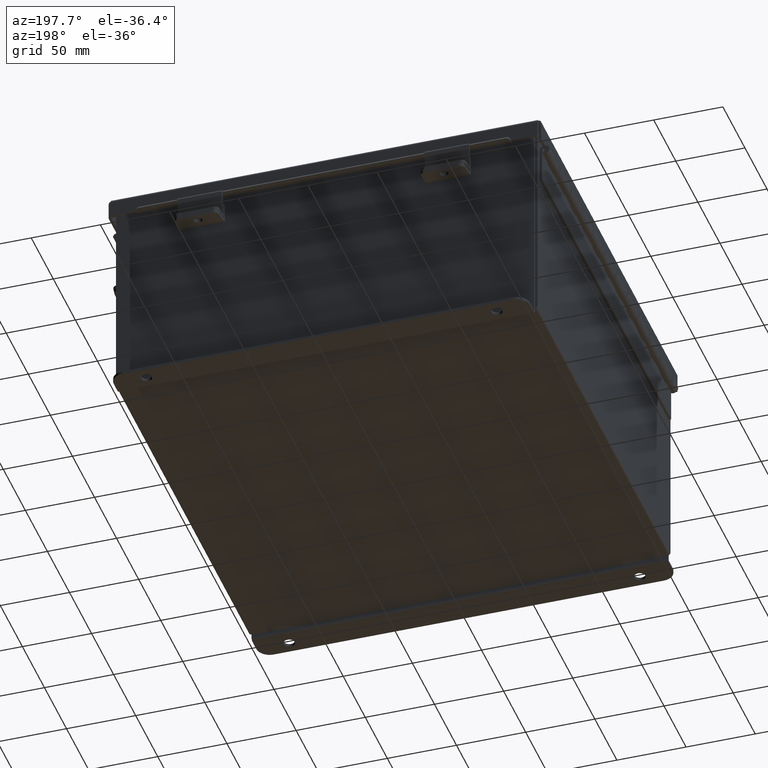
[diagram: clean part render]
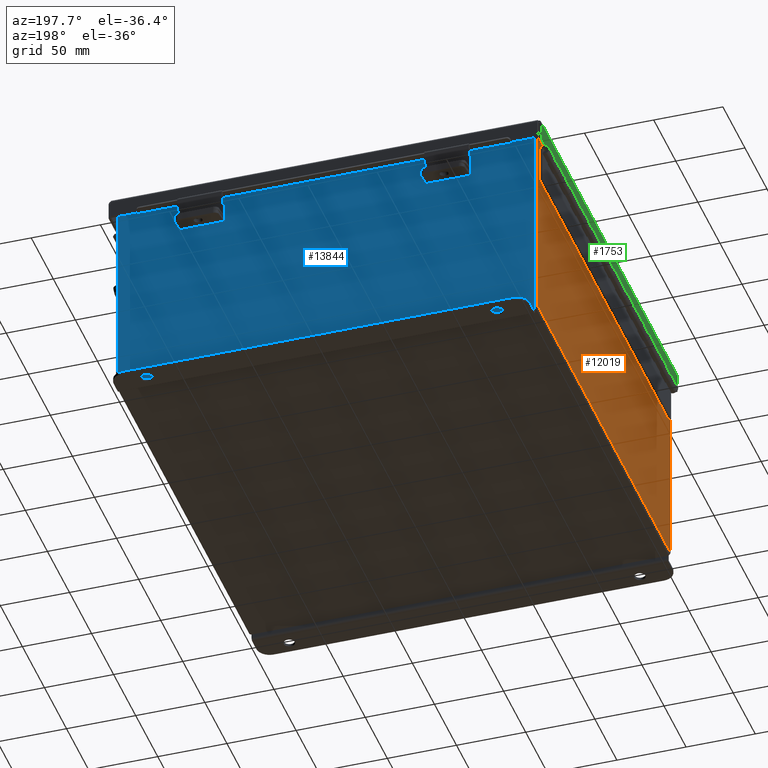
[diagram: same view with three faces highlighted in distinct colors, each labeled with its STEP entity id]
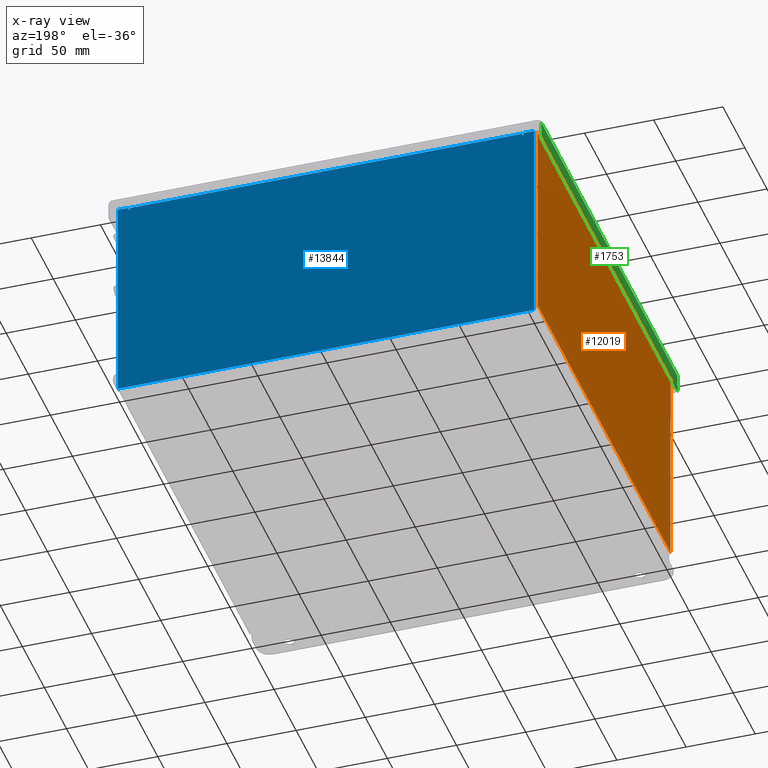
[diagram: x-ray of the same camera — body ghosted, the three highlighted faces saturated]
A machine part, auxiliary view with three faces highlighted in distinct colors.
The next image is the same camera in x-ray (body ghosted, the three faces saturated) — at least one of them is partly hidden behind the body in this view.
Their STEP definitions:

[orange] entity #12019 — the highlighted planar face has unit normal (1, 0, 0).
#993 = VECTOR ( 'NONE', #8029, 39.37007874015748100 ) ;
#1295 = DIRECTION ( 'NONE',  ( 3.548703509357741800E-015, 0.0000000000000000000, -1.000000000000000000 ) ) ;
#1420 = AXIS2_PLACEMENT_3D ( 'NONE', #5701, #11157, #3042 ) ;
#1666 = PLANE ( 'NONE',  #1420 ) ;
#1889 = EDGE_CURVE ( 'NONE', #13691, #6741, #4329, .T. ) ;
#2538 = CARTESIAN_POINT ( 'NONE',  ( -6.000000000000017800, -5.925299999999998200, 5.837600000000000100 ) ) ;
#2964 = EDGE_LOOP ( 'NONE', ( #8204, #11521, #15919, #7945 ) ) ;
#3042 = DIRECTION ( 'NONE',  ( 3.548703509357741000E-015, 0.0000000000000000000, -1.000000000000000000 ) ) ;
#4015 = EDGE_CURVE ( 'NONE', #13691, #15722, #7389, .T. ) ;
#4186 = VECTOR ( 'NONE', #1295, 39.37007874015748100 ) ;
#4264 = VECTOR ( 'NONE', #5205, 39.37007874015748100 ) ;
#4329 = LINE ( 'NONE', #14646, #15132 ) ;
#5205 = DIRECTION ( 'NONE',  ( -3.272245645671368800E-031, 1.000000000000000000, 9.220960942616457600E-017 ) ) ;
#5701 = CARTESIAN_POINT ( 'NONE',  ( -5.999999999999998200, 0.0000000000000000000, -2.155303471215802200E-014 ) ) ;
#6741 = VERTEX_POINT ( 'NONE', #13870 ) ;
#7271 = EDGE_CURVE ( 'NONE', #6741, #9730, #8208, .T. ) ;
#7290 = EDGE_CURVE ( 'NONE', #9730, #15722, #14549, .T. ) ;
#7389 = LINE ( 'NONE', #10659, #4264 ) ;
#7945 = ORIENTED_EDGE ( 'NONE', *, *, #1889, .T. ) ;
#8029 = DIRECTION ( 'NONE',  ( 0.0000000000000000000, 1.000000000000000000, 0.0000000000000000000 ) ) ;
#8204 = ORIENTED_EDGE ( 'NONE', *, *, #7271, .T. ) ;
#8208 = LINE ( 'NONE', #2538, #993 ) ;
#8853 = CARTESIAN_POINT ( 'NONE',  ( -5.999999999999998200, 5.925300000000000000, 0.01299999999999978100 ) ) ;
#9246 = CARTESIAN_POINT ( 'NONE',  ( -5.999999999999998200, -5.925299999999998200, 0.01299999999999875400 ) ) ;
#9730 = VERTEX_POINT ( 'NONE', #11135 ) ;
#10659 = CARTESIAN_POINT ( 'NONE',  ( -5.999999999999998200, 5.925300000000000000, 0.01299999999999984700 ) ) ;
#11135 = CARTESIAN_POINT ( 'NONE',  ( -6.000000000000018700, 5.925300000000000000, 5.837600000000000100 ) ) ;
#11157 = DIRECTION ( 'NONE',  ( 1.000000000000000000, 0.0000000000000000000, 3.548703509357741000E-015 ) ) ;
#11521 = ORIENTED_EDGE ( 'NONE', *, *, #7290, .T. ) ;
#12019 = ADVANCED_FACE ( 'NONE', ( #12191 ), #1666, .F. ) ;
#12144 = CARTESIAN_POINT ( 'NONE',  ( -5.999999999999998200, 5.925300000000000000, -2.155303471215802200E-014 ) ) ;
#12191 = FACE_OUTER_BOUND ( 'NONE', #2964, .T. ) ;
#13691 = VERTEX_POINT ( 'NONE', #9246 ) ;
#13870 = CARTESIAN_POINT ( 'NONE',  ( -6.000000000000017800, -5.925299999999997300, 5.837600000000000100 ) ) ;
#14549 = LINE ( 'NONE', #12144, #4186 ) ;
#14646 = CARTESIAN_POINT ( 'NONE',  ( -5.999999999999998200, -5.925300000000000000, -2.044634350668447200E-014 ) ) ;
#14753 = DIRECTION ( 'NONE',  ( -3.548703509357741800E-015, 1.867738689135653700E-016, 1.000000000000000000 ) ) ;
#15132 = VECTOR ( 'NONE', #14753, 39.37007874015748100 ) ;
#15722 = VERTEX_POINT ( 'NONE', #8853 ) ;
#15919 = ORIENTED_EDGE ( 'NONE', *, *, #4015, .F. ) ;

[blue] entity #13844 — the highlighted planar face has unit normal (0, -1, 0).
#61 = VECTOR ( 'NONE', #12616, 39.37007874015748100 ) ;
#181 = LINE ( 'NONE', #10987, #7328 ) ;
#186 = EDGE_CURVE ( 'NONE', #10593, #3145, #13520, .T. ) ;
#330 = DIRECTION ( 'NONE',  ( 1.000000000000000000, 0.0000000000000000000, 0.0000000000000000000 ) ) ;
#384 = VERTEX_POINT ( 'NONE', #6153 ) ;
#579 = CARTESIAN_POINT ( 'NONE',  ( 5.582299999999999200, 0.0000000000000000000, 0.0000000000000000000 ) ) ;
#827 = CARTESIAN_POINT ( 'NONE',  ( -5.925300000000001800, 0.0000000000000000000, 2.925300000000000000 ) ) ;
#968 = DIRECTION ( 'NONE',  ( 1.000000000000000000, -0.0000000000000000000, -0.0000000000000000000 ) ) ;
#1427 = PLANE ( 'NONE',  #8473 ) ;
#1695 = EDGE_CURVE ( 'NONE', #5341, #14082, #3268, .T. ) ;
#1698 = CARTESIAN_POINT ( 'NONE',  ( -5.582300000000000000, 2.287922694693820400E-015, 2.912299999999998800 ) ) ;
#1739 = CARTESIAN_POINT ( 'NONE',  ( 5.925299999999999100, 0.0000000000000000000, 2.925300000000000000 ) ) ;
#1956 = ORIENTED_EDGE ( 'NONE', *, *, #3551, .F. ) ;
#2033 = ORIENTED_EDGE ( 'NONE', *, *, #6102, .F. ) ;
#2076 = ORIENTED_EDGE ( 'NONE', *, *, #16983, .F. ) ;
#2680 = VECTOR ( 'NONE', #9868, 39.37007874015748100 ) ;
#2687 = CARTESIAN_POINT ( 'NONE',  ( -5.600975000000000000, 0.0000000000000000000, 2.874949999999998800 ) ) ;
#2820 = EDGE_CURVE ( 'NONE', #10125, #3145, #7230, .T. ) ;
#3145 = VERTEX_POINT ( 'NONE', #14967 ) ;
#3268 = LINE ( 'NONE', #827, #10059 ) ;
#3303 = EDGE_CURVE ( 'NONE', #11296, #10593, #17187, .T. ) ;
#3358 = EDGE_CURVE ( 'NONE', #6089, #9776, #6802, .T. ) ;
#3426 = EDGE_LOOP ( 'NONE', ( #9434, #15342, #2033, #15152, #13019, #2076, #14221, #16673, #10065, #1956, #6852, #16868 ) ) ;
#3551 = EDGE_CURVE ( 'NONE', #11296, #12872, #6993, .T. ) ;
#3632 = CARTESIAN_POINT ( 'NONE',  ( 5.619649999999937000, -0.0000000000000000000, -1.219624991268704500E-013 ) ) ;
#3796 = CARTESIAN_POINT ( 'NONE',  ( -5.925300000000001800, 0.0000000000000000000, 2.925300000000000000 ) ) ;
#4042 = DIRECTION ( 'NONE',  ( 0.0000000000000000000, 0.0000000000000000000, -1.000000000000000000 ) ) ;
#4064 = CARTESIAN_POINT ( 'NONE',  ( -5.619650000000000000, 0.0000000000000000000, 2.874949999999998800 ) ) ;
#4159 = DIRECTION ( 'NONE',  ( 0.0000000000000000000, -0.0000000000000000000, -1.000000000000000000 ) ) ;
#4838 = CARTESIAN_POINT ( 'NONE',  ( -5.619650000000000000, -0.0000000000000000000, 0.0000000000000000000 ) ) ;
#4996 = CARTESIAN_POINT ( 'NONE',  ( -5.925300000000001800, -9.177301853715884100E-017, -3.099299999999999900 ) ) ;
#5221 = LINE ( 'NONE', #13850, #8408 ) ;
#5341 = VERTEX_POINT ( 'NONE', #6360 ) ;
#5453 = CARTESIAN_POINT ( 'NONE',  ( 0.0000000000000000000, 0.0000000000000000000, 0.0000000000000000000 ) ) ;
#5652 = CARTESIAN_POINT ( 'NONE',  ( -5.582300000000000000, -0.0000000000000000000, 2.874949999999998800 ) ) ;
#5666 = VERTEX_POINT ( 'NONE', #1698 ) ;
#5924 = DIRECTION ( 'NONE',  ( -0.0000000000000000000, 1.000000000000000000, -0.0000000000000000000 ) ) ;
#6009 = CARTESIAN_POINT ( 'NONE',  ( 5.582299999999999200, 0.0000000000000000000, 2.912299999999998800 ) ) ;
#6089 = VERTEX_POINT ( 'NONE', #16375 ) ;
#6102 = EDGE_CURVE ( 'NONE', #5666, #6137, #181, .T. ) ;
#6137 = VERTEX_POINT ( 'NONE', #5652 ) ;
#6153 = CARTESIAN_POINT ( 'NONE',  ( 5.619649999999998300, 0.0000000000000000000, 2.874949999999998800 ) ) ;
#6187 = DIRECTION ( 'NONE',  ( 0.0000000000000000000, 0.0000000000000000000, 1.000000000000000000 ) ) ;
#6360 = CARTESIAN_POINT ( 'NONE',  ( 5.619650000000000000, 0.0000000000000000000, 2.925300000000000000 ) ) ;
#6422 = AXIS2_PLACEMENT_3D ( 'NONE', #2687, #12168, #4042 ) ;
#6544 = EDGE_CURVE ( 'NONE', #6137, #10125, #10001, .T. ) ;
#6802 = LINE ( 'NONE', #579, #13166 ) ;
#6852 = ORIENTED_EDGE ( 'NONE', *, *, #3303, .T. ) ;
#6993 = LINE ( 'NONE', #4996, #17399 ) ;
#7230 = LINE ( 'NONE', #4838, #12778 ) ;
#7328 = VECTOR ( 'NONE', #12354, 39.37007874015748100 ) ;
#7341 = CIRCLE ( 'NONE', #9309, 0.01867500000000003900 ) ;
#7450 = EDGE_CURVE ( 'NONE', #5666, #9776, #5221, .T. ) ;
#8042 = EDGE_CURVE ( 'NONE', #5341, #384, #14303, .T. ) ;
#8408 = VECTOR ( 'NONE', #16741, 39.37007874015748100 ) ;
#8473 = AXIS2_PLACEMENT_3D ( 'NONE', #5453, #12285, #4159 ) ;
#9080 = DIRECTION ( 'NONE',  ( -2.170286390199955400E-014, 0.0000000000000000000, -1.000000000000000000 ) ) ;
#9309 = AXIS2_PLACEMENT_3D ( 'NONE', #14034, #5924, #15404 ) ;
#9434 = ORIENTED_EDGE ( 'NONE', *, *, #2820, .F. ) ;
#9490 = VECTOR ( 'NONE', #15369, 39.37007874015748100 ) ;
#9776 = VERTEX_POINT ( 'NONE', #6009 ) ;
#9868 = DIRECTION ( 'NONE',  ( 0.0000000000000000000, 0.0000000000000000000, -1.000000000000000000 ) ) ;
#9989 = DIRECTION ( 'NONE',  ( 0.0000000000000000000, 0.0000000000000000000, 1.000000000000000000 ) ) ;
#10001 = CIRCLE ( 'NONE', #6422, 0.01867500000000003900 ) ;
#10059 = VECTOR ( 'NONE', #330, 39.37007874015748100 ) ;
#10065 = ORIENTED_EDGE ( 'NONE', *, *, #10260, .T. ) ;
#10125 = VERTEX_POINT ( 'NONE', #4064 ) ;
#10260 = EDGE_CURVE ( 'NONE', #14082, #12872, #13906, .T. ) ;
#10593 = VERTEX_POINT ( 'NONE', #3796 ) ;
#10727 = VECTOR ( 'NONE', #9080, 39.37007874015748100 ) ;
#10987 = CARTESIAN_POINT ( 'NONE',  ( -5.582300000000000000, -0.0000000000000000000, 0.0000000000000000000 ) ) ;
#11296 = VERTEX_POINT ( 'NONE', #16209 ) ;
#11903 = FACE_OUTER_BOUND ( 'NONE', #3426, .T. ) ;
#12168 = DIRECTION ( 'NONE',  ( -0.0000000000000000000, 1.000000000000000000, -0.0000000000000000000 ) ) ;
#12285 = DIRECTION ( 'NONE',  ( 0.0000000000000000000, -1.000000000000000000, 0.0000000000000000000 ) ) ;
#12354 = DIRECTION ( 'NONE',  ( 0.0000000000000000000, 0.0000000000000000000, -1.000000000000000000 ) ) ;
#12616 = DIRECTION ( 'NONE',  ( -0.0000000000000000000, -0.0000000000000000000, 1.000000000000000000 ) ) ;
#12778 = VECTOR ( 'NONE', #6187, 39.37007874015748100 ) ;
#12872 = VERTEX_POINT ( 'NONE', #15660 ) ;
#13019 = ORIENTED_EDGE ( 'NONE', *, *, #3358, .F. ) ;
#13166 = VECTOR ( 'NONE', #9989, 39.37007874015748100 ) ;
#13422 = CARTESIAN_POINT ( 'NONE',  ( 5.925299999999999100, 0.0000000000000000000, 2.925300000000000000 ) ) ;
#13520 = LINE ( 'NONE', #16801, #9490 ) ;
#13844 = ADVANCED_FACE ( 'NONE', ( #11903 ), #1427, .F. ) ;
#13850 = CARTESIAN_POINT ( 'NONE',  ( -5.582300000000000900, 2.287922694693820400E-015, 2.912299999999998800 ) ) ;
#13906 = LINE ( 'NONE', #1739, #2680 ) ;
#14034 = CARTESIAN_POINT ( 'NONE',  ( 5.600974999999998300, 0.0000000000000000000, 2.874949999999998800 ) ) ;
#14082 = VERTEX_POINT ( 'NONE', #13422 ) ;
#14221 = ORIENTED_EDGE ( 'NONE', *, *, #8042, .F. ) ;
#14303 = LINE ( 'NONE', #3632, #10727 ) ;
#14967 = CARTESIAN_POINT ( 'NONE',  ( -5.619650000000000000, 0.0000000000000000000, 2.925300000000000000 ) ) ;
#15152 = ORIENTED_EDGE ( 'NONE', *, *, #7450, .T. ) ;
#15342 = ORIENTED_EDGE ( 'NONE', *, *, #6544, .F. ) ;
#15369 = DIRECTION ( 'NONE',  ( 1.000000000000000000, 0.0000000000000000000, 0.0000000000000000000 ) ) ;
#15404 = DIRECTION ( 'NONE',  ( 0.0000000000000000000, 0.0000000000000000000, -1.000000000000000000 ) ) ;
#15660 = CARTESIAN_POINT ( 'NONE',  ( 5.925299999999999100, -9.177301853715884100E-017, -3.099299999999999900 ) ) ;
#16209 = CARTESIAN_POINT ( 'NONE',  ( -5.925300000000000000, -9.177301853715884100E-017, -3.099299999999999900 ) ) ;
#16375 = CARTESIAN_POINT ( 'NONE',  ( 5.582299999999999200, 0.0000000000000000000, 2.874949999999998800 ) ) ;
#16673 = ORIENTED_EDGE ( 'NONE', *, *, #1695, .T. ) ;
#16679 = CARTESIAN_POINT ( 'NONE',  ( -5.925300000000001800, 0.0000000000000000000, 2.925300000000000000 ) ) ;
#16741 = DIRECTION ( 'NONE',  ( 1.000000000000000000, 0.0000000000000000000, 0.0000000000000000000 ) ) ;
#16801 = CARTESIAN_POINT ( 'NONE',  ( -5.925300000000001800, 0.0000000000000000000, 2.925300000000000000 ) ) ;
#16868 = ORIENTED_EDGE ( 'NONE', *, *, #186, .T. ) ;
#16983 = EDGE_CURVE ( 'NONE', #384, #6089, #7341, .T. ) ;
#17187 = LINE ( 'NONE', #16679, #61 ) ;
#17399 = VECTOR ( 'NONE', #968, 39.37007874015748100 ) ;

[green] entity #1753 — the highlighted planar face has unit normal (1, -0, 0).
#653 = CARTESIAN_POINT ( 'NONE',  ( 6.156250000000002700, -6.074478932188137400, 0.5503000000000000100 ) ) ;
#790 = LINE ( 'NONE', #14370, #14785 ) ;
#1020 = CARTESIAN_POINT ( 'NONE',  ( 6.156250000000002700, -1.325930851584782900E-017, 0.5503000000000000100 ) ) ;
#1168 = ORIENTED_EDGE ( 'NONE', *, *, #9797, .F. ) ;
#1753 = ADVANCED_FACE ( 'NONE', ( #6430 ), #1903, .F. ) ;
#1903 = PLANE ( 'NONE',  #13650 ) ;
#2074 = CARTESIAN_POINT ( 'NONE',  ( 6.156250000000000000, -1.325930851584782900E-017, -2.470993480592342900E-014 ) ) ;
#2196 = DIRECTION ( 'NONE',  ( -1.000000000000000000, 0.0000000000000000000, 3.971430846686188400E-015 ) ) ;
#2370 = DIRECTION ( 'NONE',  ( 3.971430846686188400E-015, 0.0000000000000000000, 1.000000000000000000 ) ) ;
#2386 = DIRECTION ( 'NONE',  ( 0.0000000000000000000, -1.000000000000000000, 0.0000000000000000000 ) ) ;
#2461 = DIRECTION ( 'NONE',  ( -0.0000000000000000000, -1.000000000000000000, -0.0000000000000000000 ) ) ;
#2848 = CARTESIAN_POINT ( 'NONE',  ( 6.156250000000000000, -6.074478932188137400, 0.01299999999999981200 ) ) ;
#3282 = LINE ( 'NONE', #1020, #16844 ) ;
#5108 = ORIENTED_EDGE ( 'NONE', *, *, #7014, .T. ) ;
#6430 = FACE_OUTER_BOUND ( 'NONE', #11294, .T. ) ;
#6847 = ORIENTED_EDGE ( 'NONE', *, *, #11692, .T. ) ;
#6935 = VERTEX_POINT ( 'NONE', #8750 ) ;
#7014 = EDGE_CURVE ( 'NONE', #6935, #15530, #790, .T. ) ;
#7293 = LINE ( 'NONE', #15958, #14102 ) ;
#8750 = CARTESIAN_POINT ( 'NONE',  ( 6.156250000000000000, 6.074478932188137400, 0.01299999999999981200 ) ) ;
#8979 = DIRECTION ( 'NONE',  ( 3.971430846686188400E-015, 0.0000000000000000000, 1.000000000000000000 ) ) ;
#9767 = CARTESIAN_POINT ( 'NONE',  ( 6.156250000000002700, 6.074478932188137400, 0.5503000000000000100 ) ) ;
#9797 = EDGE_CURVE ( 'NONE', #12593, #12211, #13068, .T. ) ;
#11181 = EDGE_CURVE ( 'NONE', #6935, #12593, #7293, .T. ) ;
#11294 = EDGE_LOOP ( 'NONE', ( #14694, #5108, #6847, #1168 ) ) ;
#11692 = EDGE_CURVE ( 'NONE', #15530, #12211, #3282, .T. ) ;
#12211 = VERTEX_POINT ( 'NONE', #653 ) ;
#12593 = VERTEX_POINT ( 'NONE', #2848 ) ;
#12663 = VECTOR ( 'NONE', #16860, 39.37007874015748100 ) ;
#13068 = LINE ( 'NONE', #15498, #12663 ) ;
#13650 = AXIS2_PLACEMENT_3D ( 'NONE', #2074, #2196, #2370 ) ;
#14102 = VECTOR ( 'NONE', #2461, 39.37007874015748100 ) ;
#14370 = CARTESIAN_POINT ( 'NONE',  ( 6.156250000000000000, 6.074478932188137400, -2.470993480592342900E-014 ) ) ;
#14694 = ORIENTED_EDGE ( 'NONE', *, *, #11181, .F. ) ;
#14785 = VECTOR ( 'NONE', #8979, 39.37007874015748100 ) ;
#15498 = CARTESIAN_POINT ( 'NONE',  ( 6.156250000000000000, -6.074478932188137400, -2.966658842474588900E-016 ) ) ;
#15530 = VERTEX_POINT ( 'NONE', #9767 ) ;
#15958 = CARTESIAN_POINT ( 'NONE',  ( 6.156250000000000000, -6.156249999999998200, 0.01299999999999981200 ) ) ;
#16844 = VECTOR ( 'NONE', #2386, 39.37007874015748100 ) ;
#16860 = DIRECTION ( 'NONE',  ( 3.971430846686188400E-015, -0.0000000000000000000, 1.000000000000000000 ) ) ;